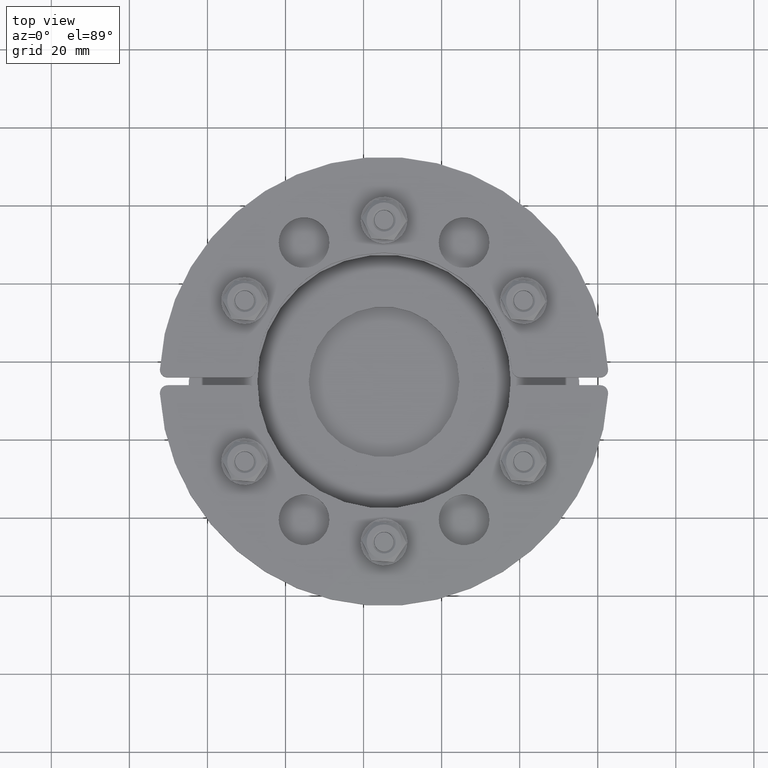
[diagram: clean part render]
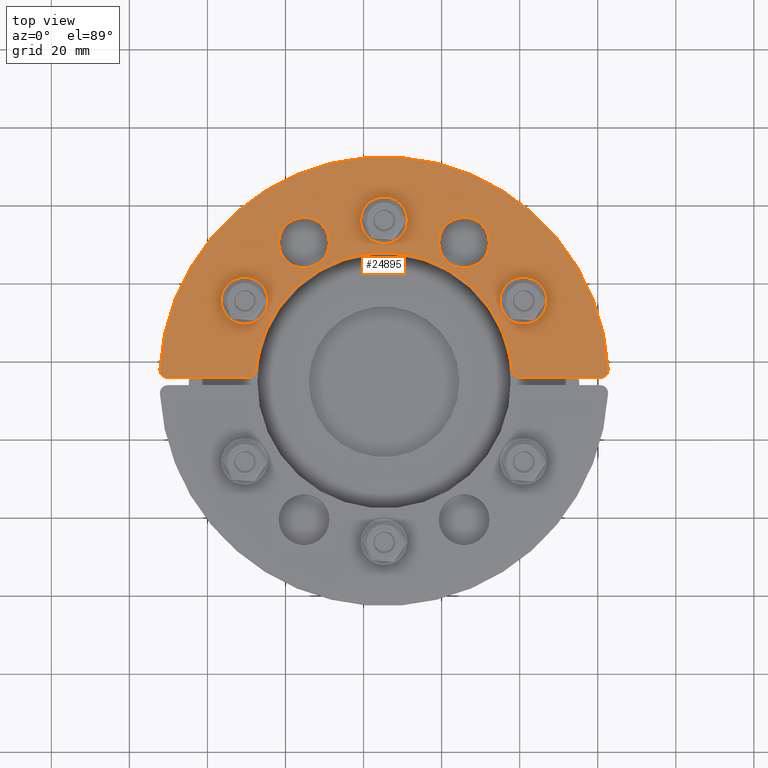
[diagram: same view with one face highlighted and labeled with its STEP entity id]
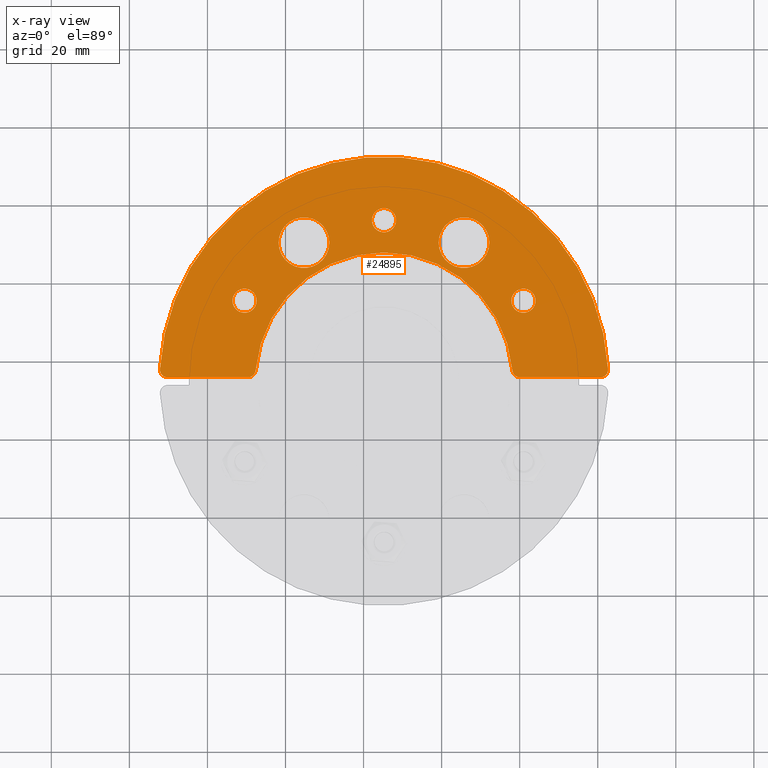
[diagram: x-ray of the same camera — body ghosted, the highlighted face saturated]
A machine part, top view. The second image highlights one B-rep face of the part: STEP entity #24895.
The next image is the same camera in x-ray: the body ghosted, the highlighted face saturated — about 0% of this face is hidden behind the body in this view.
In plain terms, the highlighted planar face has unit normal (0, -0, 1).
Its self-contained STEP definition (entity closure, byte-faithful):
#24683=CARTESIAN_POINT('',(-14.000000000000021,35.507041555161976,0.0));
#24684=VERTEX_POINT('',#24683);
#24685=CARTESIAN_POINT('',(-20.500000000000021,35.507041555161976,0.0));
#24686=DIRECTION('',(0.0,0.0,-1.0));
#24687=DIRECTION('',(-1.0,0.0,0.0));
#24688=AXIS2_PLACEMENT_3D('',#24685,#24686,#24687);
#24689=CIRCLE('',#24688,6.5);
#24690=EDGE_CURVE('',#24684,#24684,#24689,.T.);
#24711=CARTESIAN_POINT('',(27.0,35.507041555161997,0.0));
#24712=VERTEX_POINT('',#24711);
#24713=CARTESIAN_POINT('',(20.500000000000004,35.507041555161997,0.0));
#24714=DIRECTION('',(0.0,0.0,-1.0));
#24715=DIRECTION('',(-1.0,0.0,0.0));
#24716=AXIS2_PLACEMENT_3D('',#24713,#24714,#24715);
#24717=CIRCLE('',#24716,6.5);
#24718=EDGE_CURVE('',#24712,#24712,#24717,.T.);
#24739=CARTESIAN_POINT('',(57.41593562756173,3.108108108108119,0.0));
#24740=VERTEX_POINT('',#24739);
#24747=CARTESIAN_POINT('',(55.418859605733495,1.000000000000002,0.0));
#24748=VERTEX_POINT('',#24747);
#24749=CARTESIAN_POINT('',(55.418859605733495,3.000000000000011,0.0));
#24750=DIRECTION('',(0.0,0.0,-1.0));
#24751=DIRECTION('',(0.725966271273689,-0.687730305405379,0.0));
#24752=AXIS2_PLACEMENT_3D('',#24749,#24750,#24751);
#24753=CIRCLE('',#24752,2.0);
#24754=EDGE_CURVE('',#24740,#24748,#24753,.T.);
#24771=CARTESIAN_POINT('',(34.871191548325385,1.000000000000002,0.0));
#24772=VERTEX_POINT('',#24771);
#24773=CARTESIAN_POINT('',(55.418859605733488,1.000000000000002,0.0));
#24774=DIRECTION('',(-1.0,0.0,0.0));
#24775=VECTOR('',#24774,20.54766805740811);
#24776=LINE('',#24773,#24775);
#24777=EDGE_CURVE('',#24748,#24772,#24776,.T.);
#24796=CARTESIAN_POINT('',(-1.027793E-015,25.614215294440825,0.0));
#24797=DIRECTION('',(0.0,0.0,1.0));
#24798=DIRECTION('',(1.0,0.0,0.0));
#24799=AXIS2_PLACEMENT_3D('',#24796,#24797,#24798);
#24800=PLANE('',#24799);
#24801=ORIENTED_EDGE('',*,*,#24754,.F.);
#24802=CARTESIAN_POINT('',(-57.41593562756173,3.108108108108101,0.0));
#24803=VERTEX_POINT('',#24802);
#24804=CARTESIAN_POINT('',(0.0,0.0,0.0));
#24805=DIRECTION('',(0.0,0.0,-1.0));
#24806=DIRECTION('',(-0.999848759829746,-0.017391304347826,0.0));
#24807=AXIS2_PLACEMENT_3D('',#24804,#24805,#24806);
#24808=CIRCLE('',#24807,57.5);
#24809=EDGE_CURVE('',#24803,#24740,#24808,.T.);
#24810=ORIENTED_EDGE('',*,*,#24809,.F.);
#24811=CARTESIAN_POINT('',(-55.418859605733502,0.999999999999993,0.0));
#24812=VERTEX_POINT('',#24811);
#24813=CARTESIAN_POINT('',(-55.418859605733502,2.999999999999994,0.0));
#24814=DIRECTION('',(0.0,0.0,-1.0));
#24815=DIRECTION('',(-0.72596627127369,-0.687730305405378,0.0));
#24816=AXIS2_PLACEMENT_3D('',#24813,#24814,#24815);
#24817=CIRCLE('',#24816,2.0);
#24818=EDGE_CURVE('',#24812,#24803,#24817,.T.);
#24819=ORIENTED_EDGE('',*,*,#24818,.F.);
#24820=CARTESIAN_POINT('',(-34.871191548325392,0.999999999999996,0.0));
#24821=VERTEX_POINT('',#24820);
#24822=CARTESIAN_POINT('',(-34.871191548325385,0.999999999999996,0.0));
#24823=DIRECTION('',(-1.0,0.0,0.0));
#24824=VECTOR('',#24823,20.547668057408117);
#24825=LINE('',#24822,#24824);
#24826=EDGE_CURVE('',#24821,#24812,#24825,.T.);
#24827=ORIENTED_EDGE('',*,*,#24826,.F.);
#24828=CARTESIAN_POINT('',(-32.878552031278225,2.828571428571419,0.0));
#24829=VERTEX_POINT('',#24828);
#24830=CARTESIAN_POINT('',(-34.871191548325392,2.999999999999989,0.0));
#24831=DIRECTION('',(0.0,0.0,-1.0));
#24832=DIRECTION('',(0.676123403782814,-0.736788397613007,0.0));
#24833=AXIS2_PLACEMENT_3D('',#24830,#24831,#24832);
#24834=CIRCLE('',#24833,2.0);
#24835=EDGE_CURVE('',#24829,#24821,#24834,.T.);
#24836=ORIENTED_EDGE('',*,*,#24835,.F.);
#24837=CARTESIAN_POINT('',(32.878552031278225,2.828571428571432,0.0));
#24838=VERTEX_POINT('',#24837);
#24839=CARTESIAN_POINT('',(0.0,0.0,0.0));
#24840=DIRECTION('',(0.0,0.0,1.0));
#24841=DIRECTION('',(0.999540757725493,0.03030303030303,0.0));
#24842=AXIS2_PLACEMENT_3D('',#24839,#24840,#24841);
#24843=CIRCLE('',#24842,33.0);
#24844=EDGE_CURVE('',#24838,#24829,#24843,.T.);
#24845=ORIENTED_EDGE('',*,*,#24844,.F.);
#24846=CARTESIAN_POINT('',(34.871191548325385,3.000000000000003,0.0));
#24847=DIRECTION('',(0.0,0.0,-1.0));
#24848=DIRECTION('',(-0.676123403782813,-0.736788397613008,0.0));
#24849=AXIS2_PLACEMENT_3D('',#24846,#24847,#24848);
#24850=CIRCLE('',#24849,2.0);
#24851=EDGE_CURVE('',#24772,#24838,#24850,.T.);
#24852=ORIENTED_EDGE('',*,*,#24851,.F.);
#24853=ORIENTED_EDGE('',*,*,#24777,.F.);
#24854=EDGE_LOOP('',(#24801,#24810,#24819,#24827,#24836,#24845,#24852,#24853));
#24855=FACE_OUTER_BOUND('',#24854,.T.);
#24856=ORIENTED_EDGE('',*,*,#24690,.T.);
#24857=EDGE_LOOP('',(#24856));
#24858=FACE_BOUND('',#24857,.T.);
#24859=ORIENTED_EDGE('',*,*,#24718,.T.);
#24860=EDGE_LOOP('',(#24859));
#24861=FACE_BOUND('',#24860,.T.);
#24862=CARTESIAN_POINT('',(-32.623547906108087,20.625000000000014,0.0));
#24863=VERTEX_POINT('',#24862);
#24864=CARTESIAN_POINT('',(-35.723547906108088,20.625000000000014,0.0));
#24865=DIRECTION('',(0.0,0.0,-1.0));
#24866=DIRECTION('',(-1.0,0.0,0.0));
#24867=AXIS2_PLACEMENT_3D('',#24864,#24865,#24866);
#24868=CIRCLE('',#24867,3.100000000000001);
#24869=EDGE_CURVE('',#24863,#24863,#24868,.T.);
#24870=ORIENTED_EDGE('',*,*,#24869,.T.);
#24871=EDGE_LOOP('',(#24870));
#24872=FACE_BOUND('',#24871,.T.);
#24873=CARTESIAN_POINT('',(38.823547906108089,20.625,0.0));
#24874=VERTEX_POINT('',#24873);
#24875=CARTESIAN_POINT('',(35.723547906108088,20.625,0.0));
#24876=DIRECTION('',(0.0,0.0,-1.0));
#24877=DIRECTION('',(-1.0,0.0,0.0));
#24878=AXIS2_PLACEMENT_3D('',#24875,#24876,#24877);
#24879=CIRCLE('',#24878,3.100000000000001);
#24880=EDGE_CURVE('',#24874,#24874,#24879,.T.);
#24881=ORIENTED_EDGE('',*,*,#24880,.T.);
#24882=EDGE_LOOP('',(#24881));
#24883=FACE_BOUND('',#24882,.T.);
#24884=CARTESIAN_POINT('',(3.099999999999998,41.25,0.0));
#24885=VERTEX_POINT('',#24884);
#24886=CARTESIAN_POINT('',(-2.158239E-015,41.25,0.0));
#24887=DIRECTION('',(0.0,0.0,-1.0));
#24888=DIRECTION('',(-1.0,0.0,0.0));
#24889=AXIS2_PLACEMENT_3D('',#24886,#24887,#24888);
#24890=CIRCLE('',#24889,3.100000000000001);
#24891=EDGE_CURVE('',#24885,#24885,#24890,.T.);
#24892=ORIENTED_EDGE('',*,*,#24891,.T.);
#24893=EDGE_LOOP('',(#24892));
#24894=FACE_BOUND('',#24893,.T.);
#24895=ADVANCED_FACE('',(#24855,#24858,#24861,#24872,#24883,#24894),#24800,.T.);